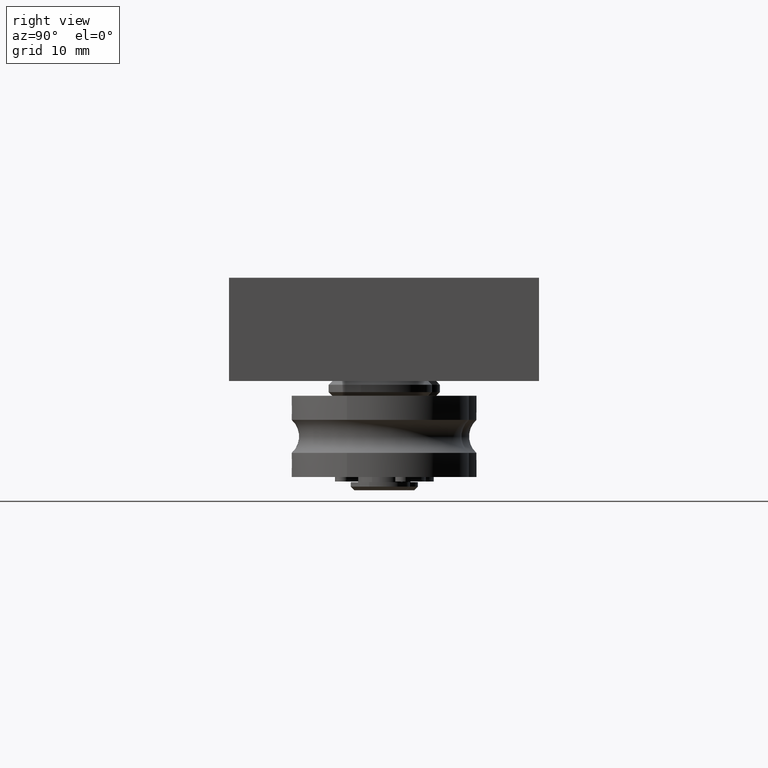
[diagram: clean part render]
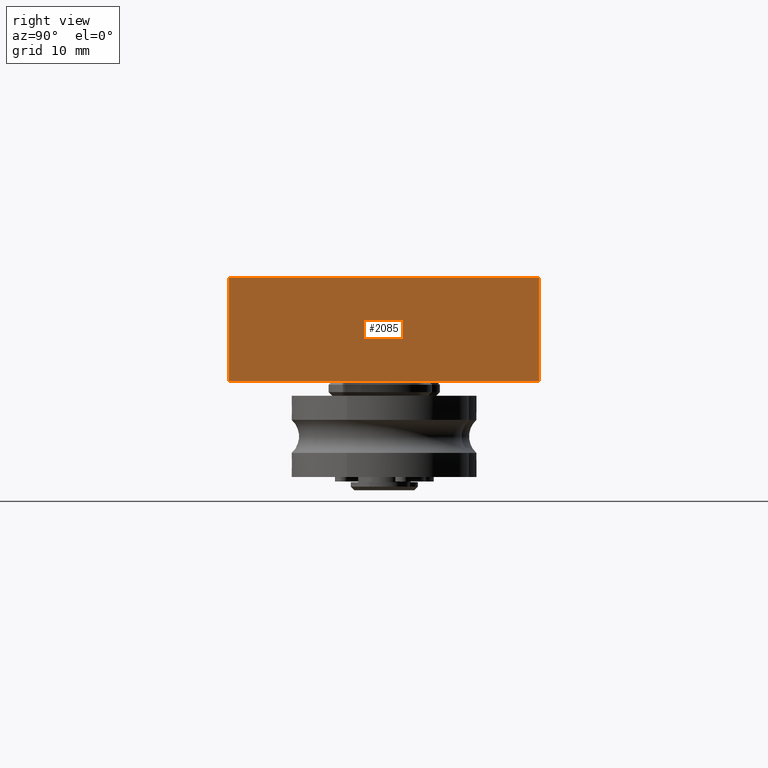
[diagram: same view with one face highlighted and labeled with its STEP entity id]
A machine part, right view. The second image highlights one B-rep face of the part: STEP entity #2085.
In plain terms, the highlighted planar face has unit normal (1, 0, 0).
Its self-contained STEP definition (entity closure, byte-faithful):
#185=PLANE('',#2456);
#304=FACE_OUTER_BOUND('',#441,.T.);
#441=EDGE_LOOP('',(#1526,#1527,#1528,#1529));
#608=LINE('',#3490,#744);
#609=LINE('',#3492,#745);
#610=LINE('',#3494,#746);
#611=LINE('',#3495,#747);
#744=VECTOR('',#2800,10.);
#745=VECTOR('',#2801,10.);
#746=VECTOR('',#2802,10.);
#747=VECTOR('',#2803,10.);
#1019=VERTEX_POINT('',#3488);
#1020=VERTEX_POINT('',#3489);
#1021=VERTEX_POINT('',#3491);
#1022=VERTEX_POINT('',#3493);
#1217=EDGE_CURVE('',#1019,#1020,#608,.T.);
#1218=EDGE_CURVE('',#1021,#1020,#609,.T.);
#1219=EDGE_CURVE('',#1022,#1021,#610,.T.);
#1220=EDGE_CURVE('',#1022,#1019,#611,.T.);
#1526=ORIENTED_EDGE('',*,*,#1217,.T.);
#1527=ORIENTED_EDGE('',*,*,#1218,.F.);
#1528=ORIENTED_EDGE('',*,*,#1219,.F.);
#1529=ORIENTED_EDGE('',*,*,#1220,.T.);
#2085=ADVANCED_FACE('',(#304),#185,.T.);
#2456=AXIS2_PLACEMENT_3D('',#3487,#2798,#2799);
#2798=DIRECTION('center_axis',(1.,0.,0.));
#2799=DIRECTION('ref_axis',(0.,0.,-1.));
#2800=DIRECTION('',(0.,-1.,0.));
#2801=DIRECTION('',(0.,0.,1.));
#2802=DIRECTION('',(0.,-1.,0.));
#2803=DIRECTION('',(0.,0.,1.));
#3487=CARTESIAN_POINT('Origin',(42.5,21.,0.));
#3488=CARTESIAN_POINT('',(42.5,21.,14.));
#3489=CARTESIAN_POINT('',(42.5,-21.,14.));
#3490=CARTESIAN_POINT('',(42.5,21.,14.));
#3491=CARTESIAN_POINT('',(42.5,-21.,0.));
#3492=CARTESIAN_POINT('',(42.5,-21.,0.));
#3493=CARTESIAN_POINT('',(42.5,21.,0.));
#3494=CARTESIAN_POINT('',(42.5,21.,0.));
#3495=CARTESIAN_POINT('',(42.5,21.,0.));